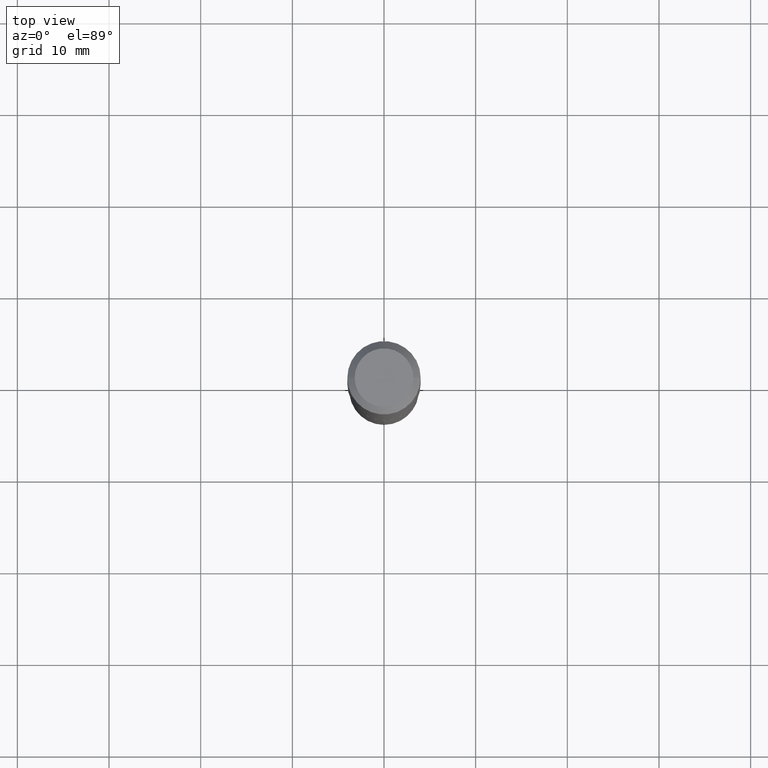
[diagram: clean part render]
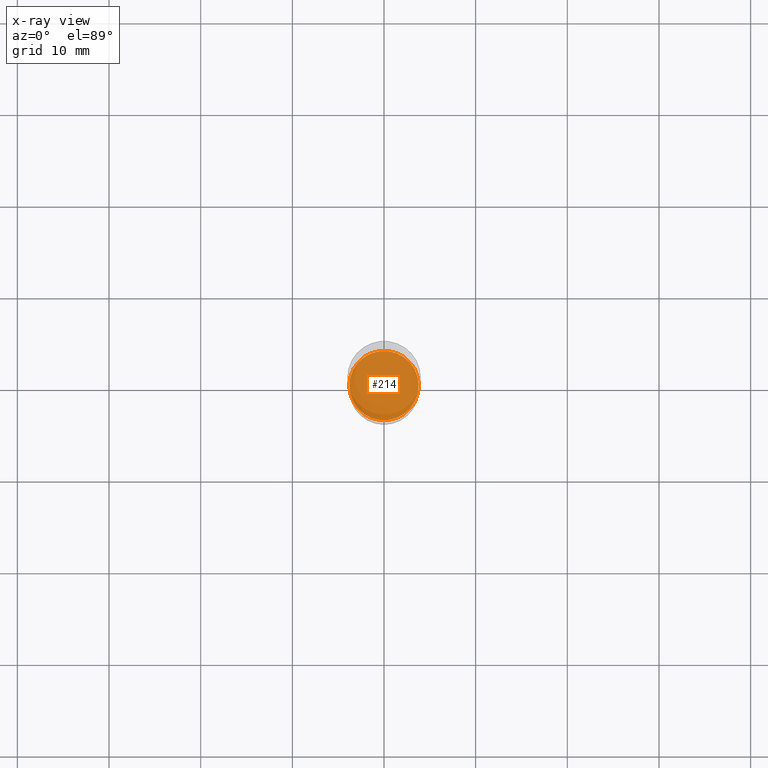
[diagram: x-ray — body ghosted, one internal face saturated and labeled with its STEP entity id]
A machine part, top view, then the same camera in x-ray: the body is ghosted and one INTERNAL B-rep face — a face not visible from any outside direction — is saturated and labeled: STEP entity #214.
In plain terms, the highlighted planar face has unit normal (-0, 0, 1).
Its self-contained STEP definition (entity closure, byte-faithful):
#20 = EDGE_LOOP ( 'NONE', ( #47, #353 ) ) ;
#28 = EDGE_CURVE ( 'NONE', #85, #367, #394, .T. ) ;
#47 = ORIENTED_EDGE ( 'NONE', *, *, #28, .F. ) ;
#66 = FACE_OUTER_BOUND ( 'NONE', #20, .T. ) ;
#83 = DIRECTION ( 'NONE',  ( 1.000000000000000000, -6.982962677686265133E-15, 0.000000000000000000 ) ) ;
#85 = VERTEX_POINT ( 'NONE', #106 ) ;
#106 = CARTESIAN_POINT ( 'NONE',  ( 0.1491000000000000103, -7.914140750755754301E-15, -1.968500000000000139 ) ) ;
#144 = DIRECTION ( 'NONE',  ( 1.000000000000000000, -6.982962677686265133E-15, 0.000000000000000000 ) ) ;
#192 = DIRECTION ( 'NONE',  ( -2.445468806185136597E-29, 3.491481338843145583E-15, 1.000000000000000000 ) ) ;
#211 = CARTESIAN_POINT ( 'NONE',  ( 4.813905344975441835E-29, -6.872981015512731707E-15, -1.968500000000000139 ) ) ;
#213 = CIRCLE ( 'NONE', #271, 0.1491000000000000103 ) ;
#214 = ADVANCED_FACE ( 'NONE', ( #66 ), #217, .F. ) ;
#217 = PLANE ( 'NONE',  #479 ) ;
#255 = DIRECTION ( 'NONE',  ( -2.438088387897960049E-29, 3.491481338843145188E-15, 1.000000000000000000 ) ) ;
#271 = AXIS2_PLACEMENT_3D ( 'NONE', #211, #486, #83 ) ;
#289 = CARTESIAN_POINT ( 'NONE',  ( -0.1491000000000000103, -5.810912569320311056E-15, -1.968500000000000139 ) ) ;
#290 = CARTESIAN_POINT ( 'NONE',  ( 4.813905344975441835E-29, -6.872981015512731707E-15, -1.968500000000000139 ) ) ;
#308 = AXIS2_PLACEMENT_3D ( 'NONE', #290, #192, #144 ) ;
#333 = CARTESIAN_POINT ( 'NONE',  ( 4.813905344975441835E-29, -6.872981015512731707E-15, -1.968500000000000139 ) ) ;
#353 = ORIENTED_EDGE ( 'NONE', *, *, #439, .F. ) ;
#367 = VERTEX_POINT ( 'NONE', #289 ) ;
#394 = CIRCLE ( 'NONE', #308, 0.1491000000000000103 ) ;
#439 = EDGE_CURVE ( 'NONE', #367, #85, #213, .T. ) ;
#442 = DIRECTION ( 'NONE',  ( 1.000000000000000000, -6.982962677686265922E-15, 4.876176775795935793E-29 ) ) ;
#479 = AXIS2_PLACEMENT_3D ( 'NONE', #333, #255, #442 ) ;
#486 = DIRECTION ( 'NONE',  ( -2.445468806185136597E-29, 3.491481338843145583E-15, 1.000000000000000000 ) ) ;